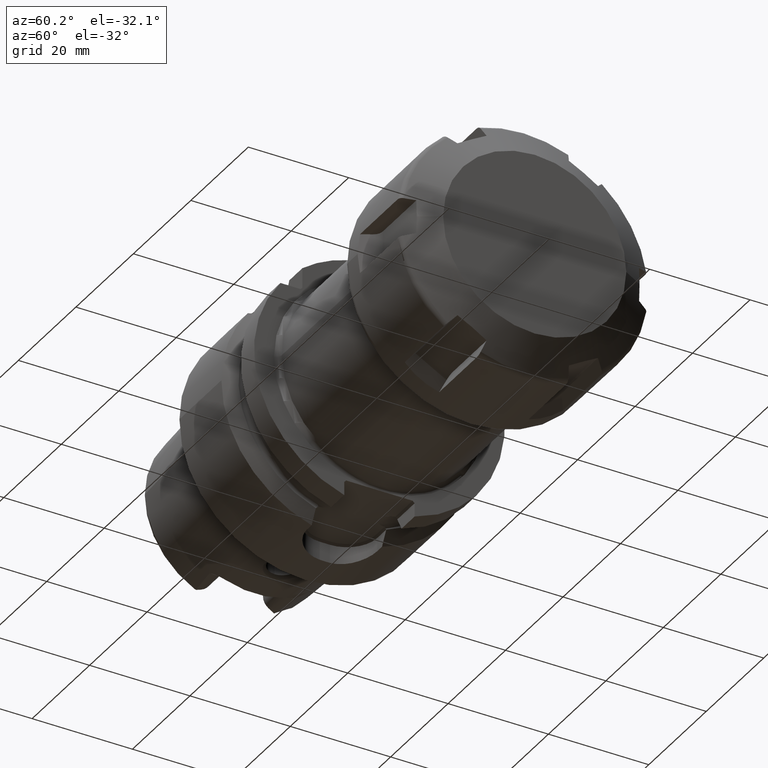
[diagram: clean part render]
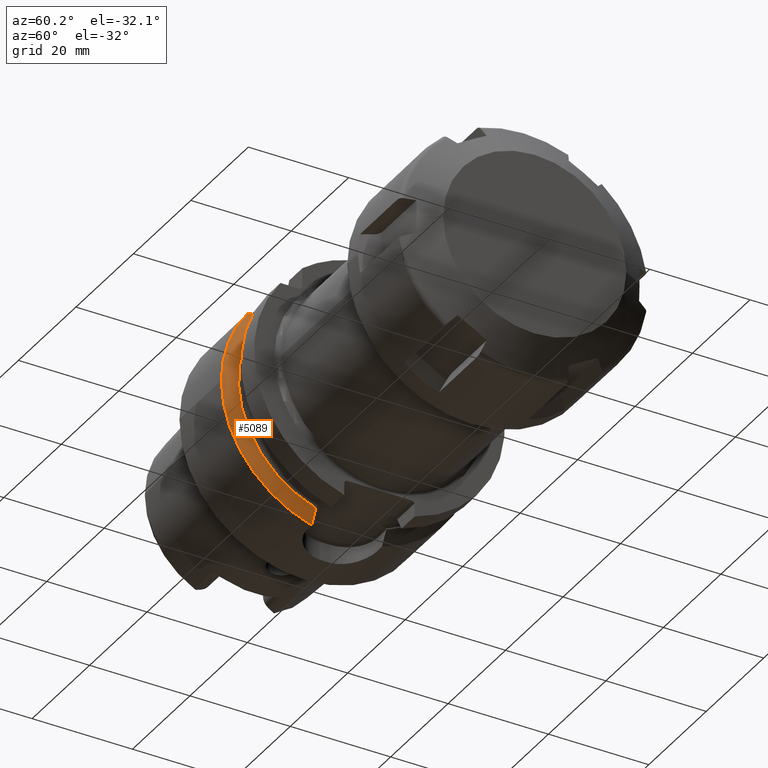
[diagram: same view with one face highlighted and labeled with its STEP entity id]
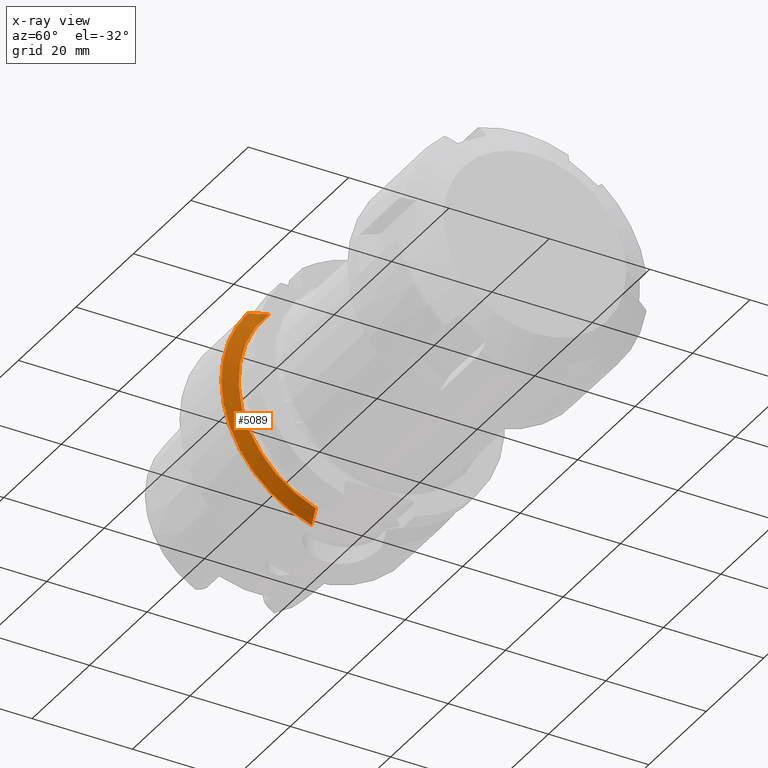
[diagram: x-ray of the same camera — body ghosted, the highlighted face saturated]
A machine part, auxiliary view. The second image highlights one B-rep face of the part: STEP entity #5089.
The next image is the same camera in x-ray: the body ghosted, the highlighted face saturated — about 2% of this face is hidden behind the body in this view.
In plain terms, the highlighted conical surface has half-angle 60 deg.
Its self-contained STEP definition (entity closure, byte-faithful):
#970=CARTESIAN_POINT('',(1.460806716851E1,0.E0,0.E0));
#971=DIRECTION('',(1.E0,0.E0,0.E0));
#972=DIRECTION('',(0.E0,-7.893060243024E-1,6.14E-1));
#973=AXIS2_PLACEMENT_3D('',#970,#971,#972);
#1091=CARTESIAN_POINT('',(1.460806716851E1,0.E0,0.E0));
#1092=DIRECTION('',(1.E0,0.E0,0.E0));
#1093=DIRECTION('',(0.E0,-1.E0,0.E0));
#1094=AXIS2_PLACEMENT_3D('',#1091,#1092,#1093);
#1753=CARTESIAN_POINT('',(1.60875E1,0.E0,0.E0));
#1754=DIRECTION('',(1.E0,0.E0,0.E0));
#1755=DIRECTION('',(0.E0,-7.293684165425E-1,6.841211244731E-1));
#1756=AXIS2_PLACEMENT_3D('',#1753,#1754,#1755);
#1766=CARTESIAN_POINT('',(1.60875E1,-7.0175E0,-2.131192663117E1));
#1767=CARTESIAN_POINT('',(1.593188333563E1,-7.0175E0,-2.159569853632E1));
#1768=CARTESIAN_POINT('',(1.561480512555E1,-7.0175E0,-2.217279119970E1));
#1769=CARTESIAN_POINT('',(1.512190269435E1,-7.0175E0,-2.306665585329E1));
#1770=CARTESIAN_POINT('',(1.478131530124E1,-7.0175E0,-2.368224465230E1));
#1771=CARTESIAN_POINT('',(1.460806716851E1,-7.0175E0,-2.399488890889E1));
#1818=CARTESIAN_POINT('',(1.60875E1,-1.636523825010E1,1.535E1));
#1819=CARTESIAN_POINT('',(1.594222955282E1,-1.671021589054E1,1.535E1));
#1820=CARTESIAN_POINT('',(1.563917139666E1,-1.741962945744E1,1.535E1));
#1821=CARTESIAN_POINT('',(1.514914658008E1,-1.853580810939E1,1.535E1));
#1822=CARTESIAN_POINT('',(1.479309423109E1,-1.932662776812E1,1.535E1));
#1823=CARTESIAN_POINT('',(1.460806716851E1,-1.973265060756E1,1.535E1));
#2977=CARTESIAN_POINT('',(1.60875E1,-7.0175E0,-2.131192663117E1));
#2979=VERTEX_POINT('',#2977);
#2985=VERTEX_POINT('',#1771);
#3022=CARTESIAN_POINT('',(1.60875E1,-1.636523825010E1,1.535E1));
#3024=VERTEX_POINT('',#3022);
#3032=VERTEX_POINT('',#1823);
#3129=CARTESIAN_POINT('',(1.460806716851E1,-2.5E1,0.E0));
#3130=VERTEX_POINT('',#3129);
#5075=CARTESIAN_POINT('',(1.534778358426E1,0.E0,0.E0));
#5076=DIRECTION('',(-1.E0,0.E0,0.E0));
#5077=DIRECTION('',(0.E0,1.E0,0.E0));
#5078=AXIS2_PLACEMENT_3D('',#5075,#5076,#5077);
#5079=CONICAL_SURFACE('',#5078,2.371877358474E1,6.E1);
#5080=ORIENTED_EDGE('',*,*,#4543,.T.);
#5082=ORIENTED_EDGE('',*,*,#5081,.T.);
#5083=ORIENTED_EDGE('',*,*,#4355,.F.);
#5084=ORIENTED_EDGE('',*,*,#4253,.F.);
#5086=ORIENTED_EDGE('',*,*,#5085,.F.);
#5087=EDGE_LOOP('',(#5080,#5082,#5083,#5084,#5086));
#5088=FACE_OUTER_BOUND('',#5087,.F.);
#5089=ADVANCED_FACE('',(#5088),#5079,.T.);
#974=CIRCLE('',#973,2.5E1);
#1095=CIRCLE('',#1094,2.5E1);
#1757=CIRCLE('',#1756,2.243754716948E1);
#1772=B_SPLINE_CURVE_WITH_KNOTS('',3,(#1766,#1767,#1768,#1769,#1770,#1771),
.UNSPECIFIED.,.F.,.F.,(4,1,1,4),(0.E0,3.333333333333E-1,6.666666666667E-1,1.E0),
.UNSPECIFIED.);
#1824=B_SPLINE_CURVE_WITH_KNOTS('',3,(#1818,#1819,#1820,#1821,#1822,#1823),
.UNSPECIFIED.,.F.,.F.,(4,1,1,4),(0.E0,3.333333333333E-1,6.666666666667E-1,1.E0),
.UNSPECIFIED.);
#4253=EDGE_CURVE('',#3032,#3130,#974,.T.);
#4355=EDGE_CURVE('',#3130,#2985,#1095,.T.);
#4543=EDGE_CURVE('',#3024,#2979,#1757,.T.);
#5081=EDGE_CURVE('',#2979,#2985,#1772,.T.);
#5085=EDGE_CURVE('',#3024,#3032,#1824,.T.);